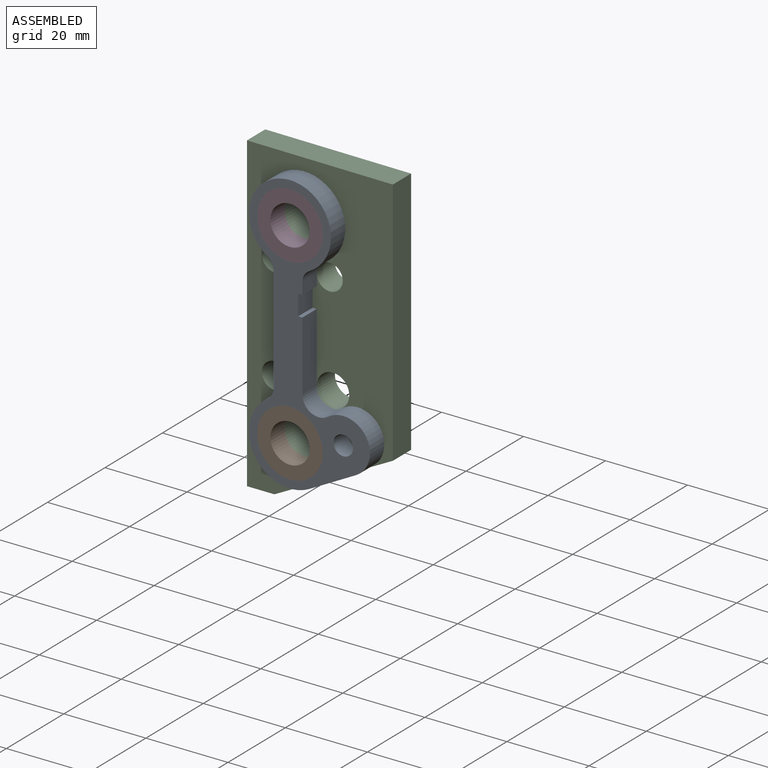
[diagram: assembled view]
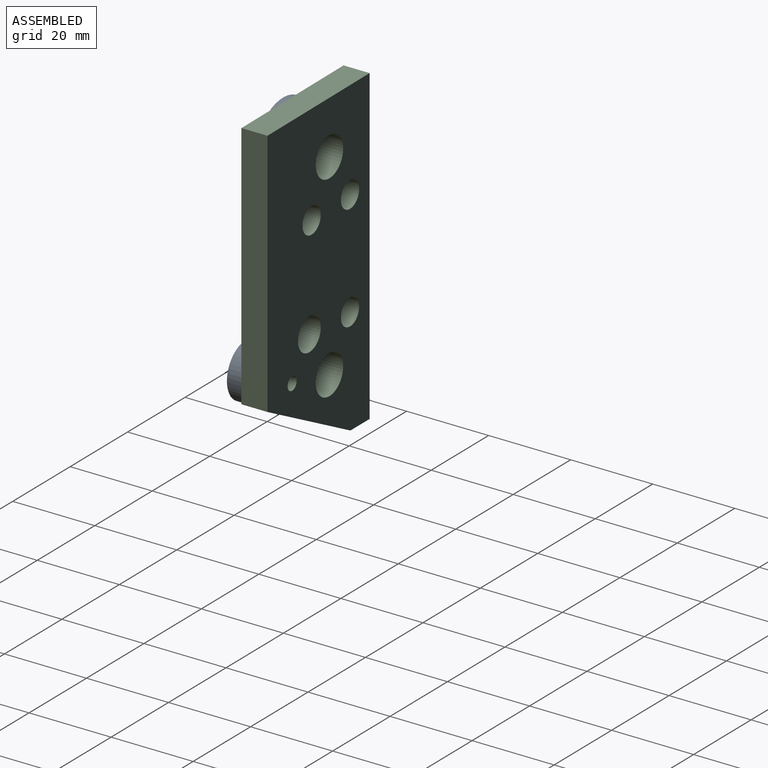
[diagram: assembled view, second angle]
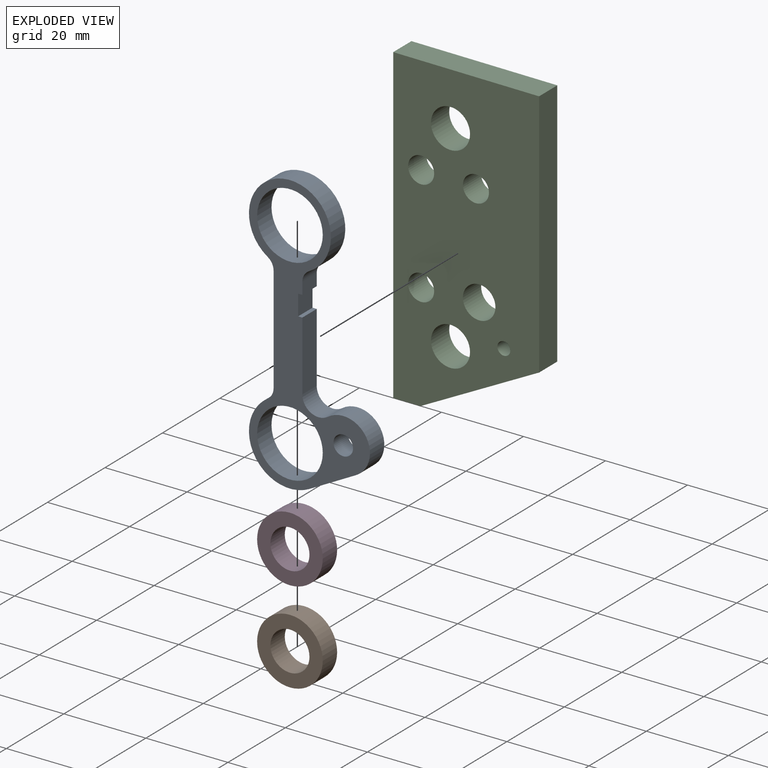
[diagram: exploded view]
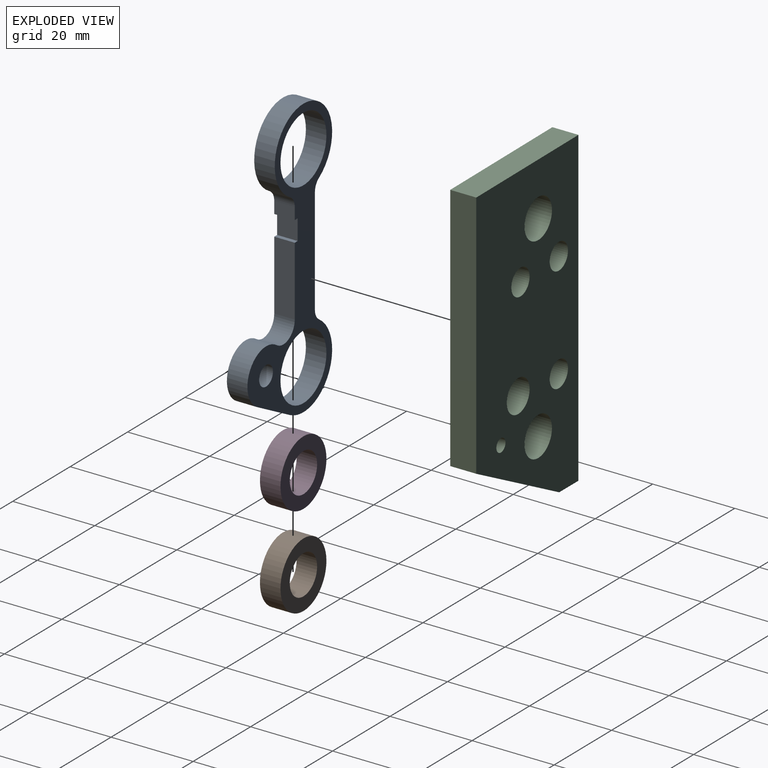
[diagram: exploded view, second angle]
ASSEMBLY  parts=4 mates=3
PART A: 19 faces, bbox 29.5x5x68 mm
  f0: plane 16.93x5mm, normal (1,0,0), area 84.7mm2, adj f1,f2,f8,f15
  f1: plane 68x29.5mm, normal (0,-1,0), area 529.4mm2, adj f0,f3,f4,f5,f6,f7,f8,f9
  f2: plane 68x29.5mm, normal (0,1,0), area 529.4mm2, adj f0,f3,f4,f5,f6,f7,f8,f9
  f3: cylinder r=9.99mm len=19.99mm, axis (0,1,0), area 261mm2, adj f1,f2,f10,f11
  f4: plane 25.9x5mm, normal (-1,0,0), area 129.6mm2, adj f1,f2,f10,f12
  f5: cylinder r=9.99mm len=18.38mm, axis (0,1,0), area 152.9mm2, adj f1,f2,f6,f12
  f6: plane 11.36x6.08mm, normal (0.47,0,-0.88), area 64.5mm2, adj f1,f2,f5,f7
  f7: cylinder r=6.5mm len=12.24mm, axis (0,1,0), area 106.1mm2, adj f1,f2,f6,f8
  f8: cylinder r=3.97mm len=6.25mm, axis (0,1,0), area 43.3mm2, adj f0,f1,f2,f7
  f9: plane 5x2.88mm, normal (1,0,0), area 14.4mm2, adj f1,f2,f11,f16
  f10: cylinder r=3.17mm len=5mm, axis (0,1,0), area 15.8mm2, adj f1,f2,f3,f4
  f11: cylinder r=3.17mm len=5mm, axis (0,1,0), area 17.2mm2, adj f1,f2,f3,f9
  f12: cylinder r=3.17mm len=5mm, axis (0,1,0), area 15.8mm2, adj f1,f2,f4,f5
  f13: cylinder r=8mm len=16mm, axis (0,-1,0), area 251.5mm2, adj f1,f2
  f14: cylinder r=8mm len=16mm, axis (0,-1,0), area 251.5mm2, adj f1,f2
  f15: plane 5x1.02mm, normal (0,0,1), area 5.1mm2, adj f0,f1,f2,f17
  f16: plane 5x1.02mm, normal (0,0,-1), area 5.1mm2, adj f1,f2,f9,f17
  f17: plane 5x5mm, normal (1,0,0), area 25mm2, adj f1,f2,f15,f16
  f18: cylinder r=2.39mm len=5mm, axis (0,-1,0), area 75.1mm2, adj f1,f2
PART B: 4 faces, bbox 16x5x16 mm
  f0: cylinder r=4.76mm len=9.53mm, axis (0,1,0), area 149.7mm2, adj f2,f3
  f1: cylinder r=8mm len=16mm, axis (0,1,0), area 251.5mm2, adj f2,f3
  f2: plane 16x16mm, normal (0,-1,0), area 129.9mm2, adj f0,f1
  f3: plane 16x16mm, normal (0,1,0), area 129.9mm2, adj f0,f1
PART C: 14 faces, bbox 35.6x6.4x76.2 mm
  f0: plane 28.88x15.11mm, normal (0.46,0,-0.89), area 207mm2, adj f1,f11,f12,f13
  f1: plane 60.86x6.35mm, normal (1,0,0), area 386.5mm2, adj f0,f2,f12,f13
  f2: plane 35.56x6.35mm, normal (0.01,0,1), area 225.8mm2, adj f1,f3,f12,f13
  f3: plane 76.2x6.35mm, normal (-1,0,0), area 483.9mm2, adj f2,f11,f12,f13
  f4: cylinder r=4.76mm len=9.53mm, axis (0,1,0), area 190mm2, adj f12,f13
  f5: cylinder r=4.76mm len=9.53mm, axis (0,1,0), area 190mm2, adj f12,f13
  f6: cylinder r=1.59mm len=6.35mm, axis (0,1,0), area 63.3mm2, adj f12,f13
  f7: cylinder r=3.97mm len=7.94mm, axis (0,1,0), area 158.3mm2, adj f12,f13
  f8: cylinder r=3.17mm len=6.35mm, axis (0,1,0), area 126.7mm2, adj f12,f13
  f9: cylinder r=3.17mm len=6.35mm, axis (0,1,0), area 126.7mm2, adj f12,f13
  f10: cylinder r=3.17mm len=6.35mm, axis (0,1,0), area 126.7mm2, adj f12,f13
  f11: plane 6.68x6.35mm, normal (0,0,-1), area 42.4mm2, adj f0,f3,f12,f13
  f12: plane 76.2x35.56mm, normal (0,-1,0), area 2192.5mm2, adj f0,f1,f2,f3,f4,f5,f6,f7
  f13: plane 76.2x35.56mm, normal (0,1,0), area 2192.5mm2, adj f0,f1,f2,f3,f4,f5,f6,f7
PART D: same geometry as B
PLACE A t=(-8.59,-1.13,-2.79)mm fixed
PLACE B t=(-8.59,-1.13,-2.79)mm
PLACE C rot(axis=(0,1,0),0deg) t=(-8.59,5.22,-2.79)mm
PLACE D rot(axis=(0,1,0),0deg) t=(-8.59,-1.13,45.22)mm
MATE fastened C.f5 <-> A.f3  axis (0,-1,0) through (-8.59,-1.13,45.22)mm
MATE fastened B.f0 <-> A.f5  axis (0,-1,0) through (-8.59,-6.13,-2.79)mm
MATE fastened D.f0 <-> A.f3  axis (0,-1,0) through (-8.59,-6.13,45.22)mm
